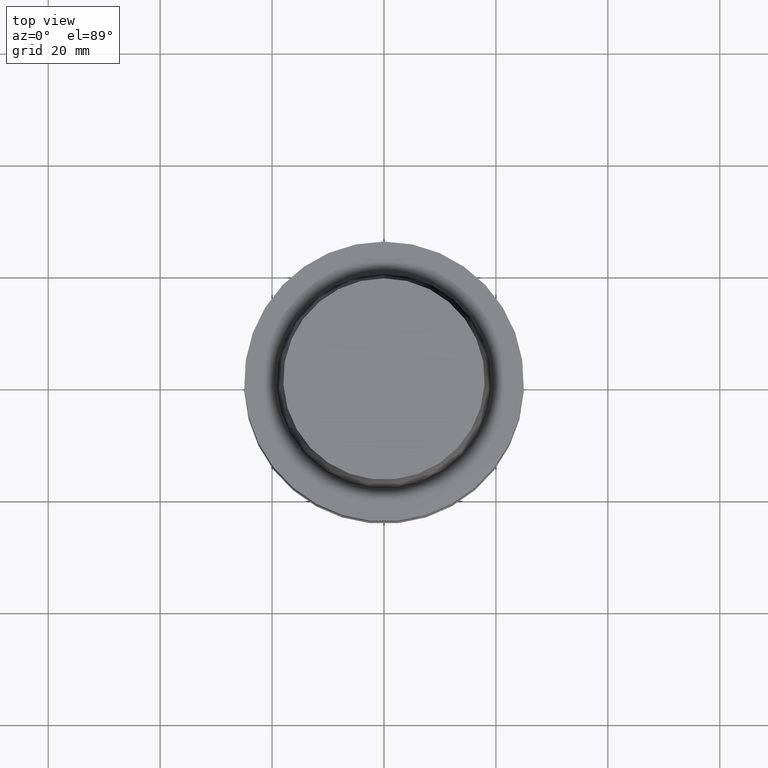
[diagram: clean part render]
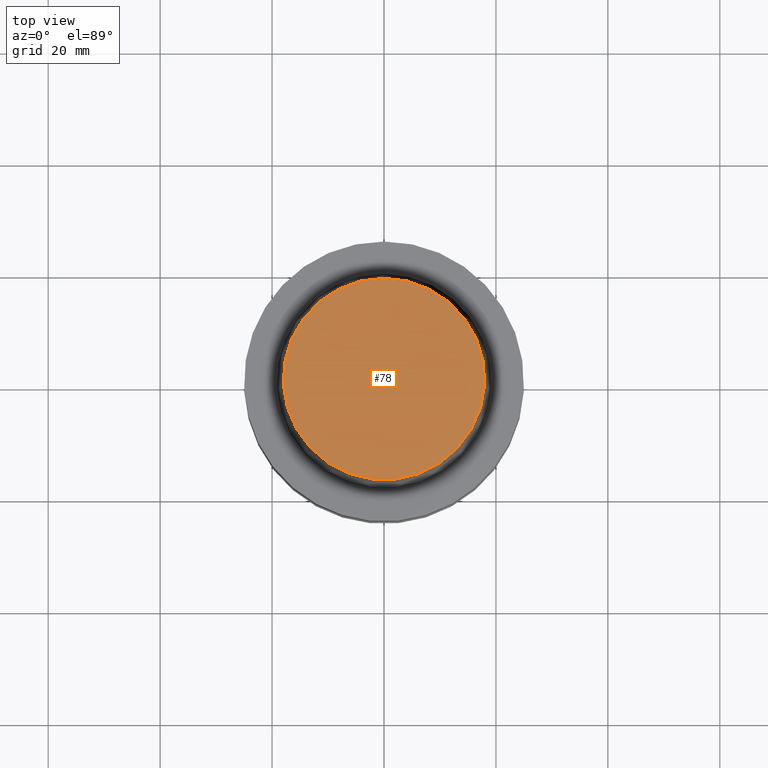
[diagram: same view with one face highlighted and labeled with its STEP entity id]
A machine part, top view. The second image highlights one B-rep face of the part: STEP entity #78.
In plain terms, the highlighted planar face has unit normal (-0, -0, 1).
Its self-contained STEP definition (entity closure, byte-faithful):
#78=ADVANCED_FACE('',(#100),#101,.T.);
#100=FACE_OUTER_BOUND('',#146,.T.);
#101=PLANE('',#147);
#146=EDGE_LOOP('',(#198));
#147=AXIS2_PLACEMENT_3D('',#199,#200,#201);
#198=ORIENTED_EDGE('',*,*,#265,.F.);
#199=CARTESIAN_POINT('',(-1.53080849893419E-015,9.00000000052154,25.0));
#200=DIRECTION('',(-6.12323399573677E-017,-1.22464679914735E-016,1.0));
#201=DIRECTION('',(1.23259516440783E-032,-1.0,-1.22464679914735E-016));
#265=EDGE_CURVE('',#283,#283,#284,.T.);
#283=VERTEX_POINT('',#313);
#284=CIRCLE('',#314,18.0000000010431);
#313=CARTESIAN_POINT('',(-1.53080849893419E-015,18.0000000010431,25.0));
#314=AXIS2_PLACEMENT_3D('',#346,#347,#348);
#346=CARTESIAN_POINT('',(-1.53080849893419E-015,-3.06161699786838E-015,25.0));
#347=DIRECTION('',(6.12323399573677E-017,1.22464679914735E-016,-1.0));
#348=DIRECTION('',(-1.23259516440783E-032,1.0,1.22464679914735E-016));